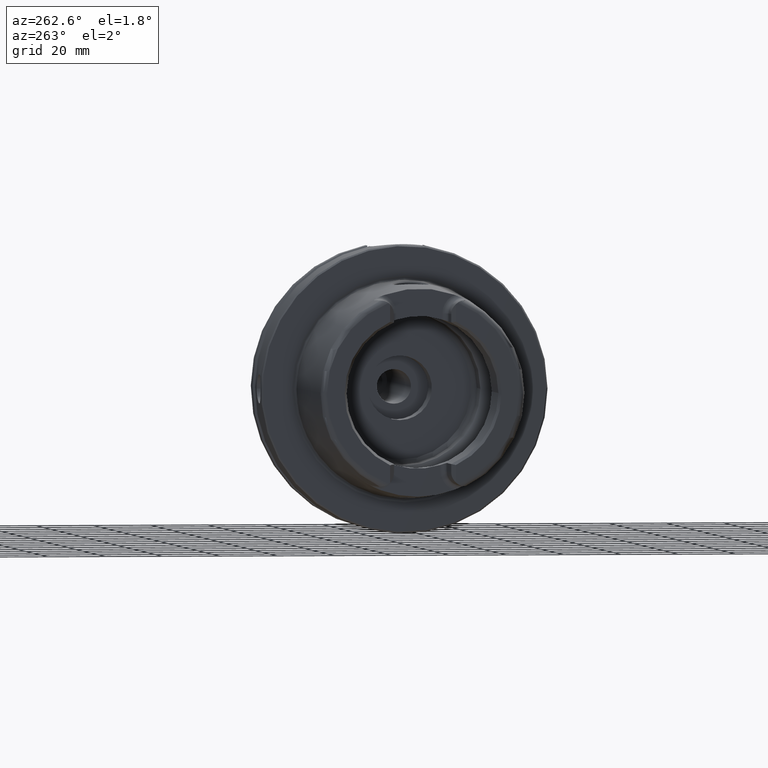
[diagram: clean part render]
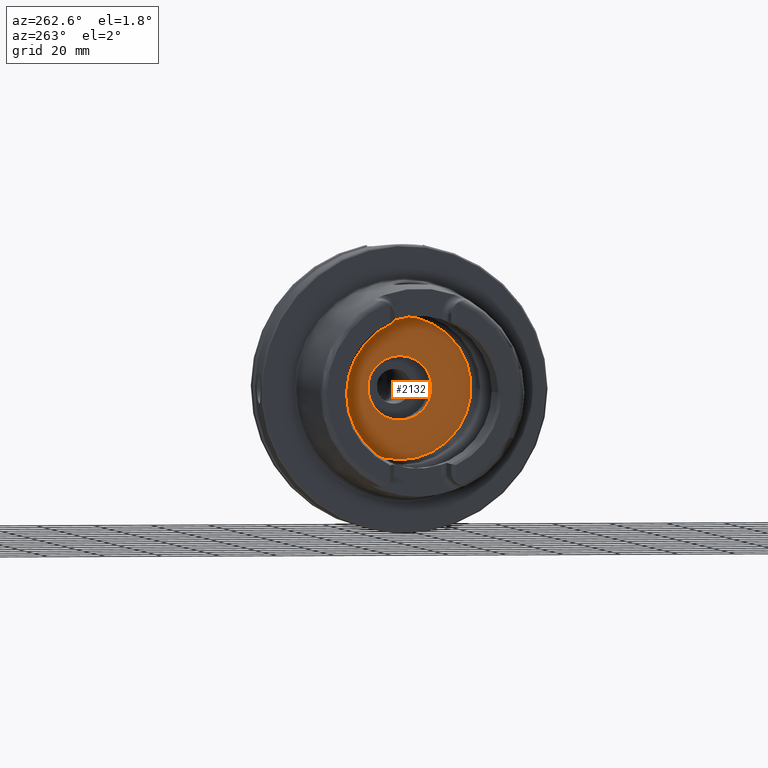
[diagram: same view with one face highlighted and labeled with its STEP entity id]
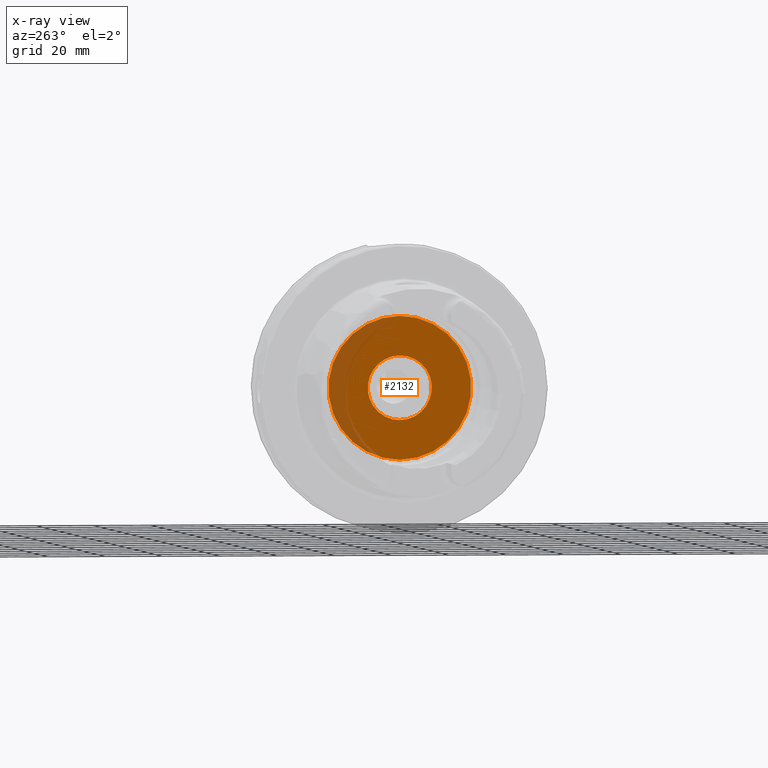
[diagram: x-ray of the same camera — body ghosted, the highlighted face saturated]
A machine part, auxiliary view. The second image highlights one B-rep face of the part: STEP entity #2132.
The next image is the same camera in x-ray: the body ghosted, the highlighted face saturated — about 19% of this face is hidden behind the body in this view.
In plain terms, the highlighted planar face has unit normal (1, 0, 0).
Its self-contained STEP definition (entity closure, byte-faithful):
#97=FACE_BOUND('',#454,.T.);
#134=PLANE('',#2403);
#318=FACE_OUTER_BOUND('',#453,.T.);
#453=EDGE_LOOP('',(#1930));
#454=EDGE_LOOP('',(#1931));
#799=CIRCLE('',#2392,11.188101);
#806=CIRCLE('',#2404,24.9);
#1020=VERTEX_POINT('',#4551);
#1026=VERTEX_POINT('',#4571);
#1326=EDGE_CURVE('',#1020,#1020,#799,.T.);
#1335=EDGE_CURVE('',#1026,#1026,#806,.T.);
#1930=ORIENTED_EDGE('',*,*,#1335,.T.);
#1931=ORIENTED_EDGE('',*,*,#1326,.T.);
#2132=ADVANCED_FACE('',(#318,#97),#134,.F.);
#2392=AXIS2_PLACEMENT_3D('',#4552,#2982,#2983);
#2403=AXIS2_PLACEMENT_3D('',#4570,#3006,#3007);
#2404=AXIS2_PLACEMENT_3D('',#4572,#3008,#3009);
#2982=DIRECTION('center_axis',(1.,0.,0.));
#2983=DIRECTION('ref_axis',(0.,0.,1.));
#3006=DIRECTION('center_axis',(1.,0.,0.));
#3007=DIRECTION('ref_axis',(0.,0.,-1.));
#3008=DIRECTION('center_axis',(-1.,0.,0.));
#3009=DIRECTION('ref_axis',(0.,0.,1.));
#4551=CARTESIAN_POINT('',(12.5,-1.37014720781873E-15,-11.188101));
#4552=CARTESIAN_POINT('Origin',(12.5,0.,0.));
#4570=CARTESIAN_POINT('Origin',(12.5,24.9,0.));
#4571=CARTESIAN_POINT('',(12.5,-3.04937052987691E-15,-24.9));
#4572=CARTESIAN_POINT('Origin',(12.5,0.,0.));